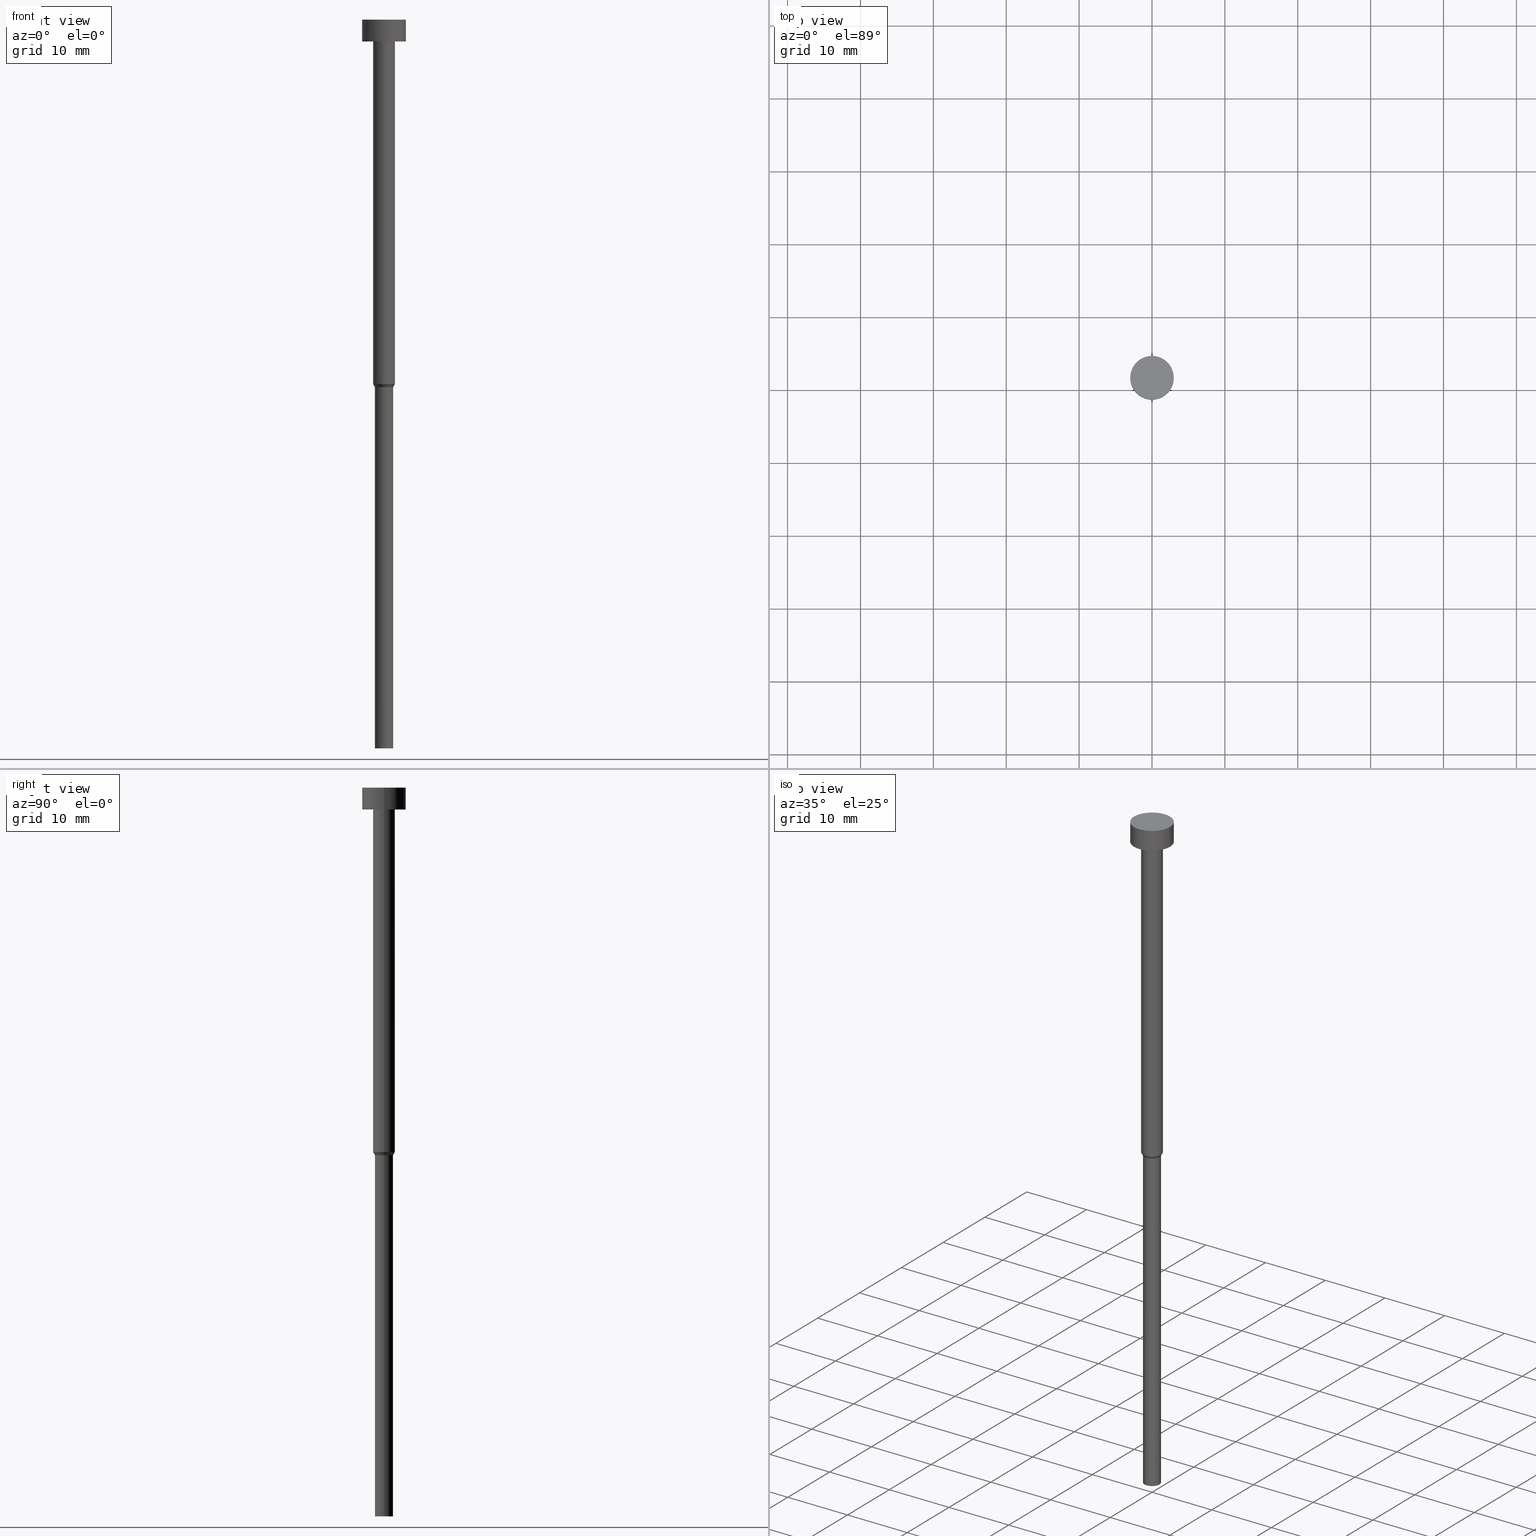
[diagram: canonical four-view strip — front | top / right | iso, engineering-drawing reading convention]
A machine part, canonical four-view strip (front | top / right | iso — engineering-drawing reading convention). The complete STEP part file that produces these views, byte-faithful:
ISO-10303-21;
HEADER;
FILE_DESCRIPTION (( 'STEP AP203' ),
    '1' );
FILE_NAME ('a995.STEP',
    '2023-02-13T10:54:57',
    ( '' ),
    ( '' ),
    'SwSTEP 2.0',
    'SolidWorks 2019',
    '' );
FILE_SCHEMA (( 'CONFIG_CONTROL_DESIGN' ));
ENDSEC;

DATA;
#1 = DIRECTION ( 'NONE',  ( -0.000000000000000000, -0.000000000000000000, 1.000000000000000000 ) ) ;
#2 = ADVANCED_FACE ( 'NONE', ( #145 ), #94, .T. ) ;
#3 = CARTESIAN_POINT ( 'NONE',  ( 0.000000000000000000, -3.000000000000000000, -3.000000000000000888 ) ) ;
#4 = AXIS2_PLACEMENT_3D ( 'NONE', #32, #191, #161 ) ;
#5 = EDGE_CURVE ( 'NONE', #72, #127, #252, .T. ) ;
#6 = DIRECTION ( 'NONE',  ( 1.000000000000000000, 0.000000000000000000, 0.000000000000000000 ) ) ;
#7 = CYLINDRICAL_SURFACE ( 'NONE', #135, 1.250000000000000000 ) ;
#8 = CARTESIAN_POINT ( 'NONE',  ( 0.000000000000000000, 0.000000000000000000, -3.000000000000000888 ) ) ;
#9 = ADVANCED_FACE ( 'NONE', ( #227 ), #91, .T. ) ;
#10 = DIRECTION ( 'NONE',  ( -0.000000000000000000, -0.000000000000000000, 1.000000000000000000 ) ) ;
#11 = ORIENTED_EDGE ( 'NONE', *, *, #16, .F. ) ;
#12 = COORDINATED_UNIVERSAL_TIME_OFFSET ( 1, 0, .AHEAD. ) ;
#13 = ORIENTED_EDGE ( 'NONE', *, *, #139, .F. ) ;
#14 = ORIENTED_EDGE ( 'NONE', *, *, #285, .T. ) ;
#15 = CIRCLE ( 'NONE', #329, 3.000000000000000000 ) ;
#16 = EDGE_CURVE ( 'NONE', #67, #288, #336, .T. ) ;
#17 = DIRECTION ( 'NONE',  ( 1.000000000000000000, 0.000000000000000000, 0.000000000000000000 ) ) ;
#18 = DIRECTION ( 'NONE',  ( 1.000000000000000000, 0.000000000000000000, 0.000000000000000000 ) ) ;
#19 = ADVANCED_FACE ( 'NONE', ( #90 ), #278, .T. ) ;
#20 = CONICAL_SURFACE ( 'NONE', #184, 1.500000000000000000, 0.5235987755982968173 ) ;
#21 = CALENDAR_DATE ( 2023, 13, 2 ) ;
#22 = APPROVAL_STATUS ( 'not_yet_approved' ) ;
#23 = DATE_AND_TIME ( #353, #205 ) ;
#24 = MECHANICAL_CONTEXT ( 'NONE', #320, 'mechanical' ) ;
#25 = CARTESIAN_POINT ( 'NONE',  ( 0.000000000000000000, 0.000000000000000000, -100.0000000000000000 ) ) ;
#26 = LOCAL_TIME ( 11, 54, 57.00000000000000000, #12 ) ;
#27 = DIRECTION ( 'NONE',  ( 1.000000000000000000, 0.000000000000000000, 0.000000000000000000 ) ) ;
#28 = DIRECTION ( 'NONE',  ( 1.000000000000000000, 0.000000000000000000, 0.000000000000000000 ) ) ;
#29 = CC_DESIGN_DATE_AND_TIME_ASSIGNMENT ( #238, #102, ( #311 ) ) ;
#30 = CIRCLE ( 'NONE', #38, 1.250000000000000000 ) ;
#31 = CARTESIAN_POINT ( 'NONE',  ( 3.000000000000000000, 0.000000000000000000, -3.673940397442059868E-16 ) ) ;
#32 = CARTESIAN_POINT ( 'NONE',  ( 0.000000000000000000, 0.000000000000000000, -3.673940397442059868E-16 ) ) ;
#33 = CARTESIAN_POINT ( 'NONE',  ( 0.000000000000000000, 0.000000000000000000, 0.000000000000000000 ) ) ;
#34 = DIRECTION ( 'NONE',  ( -0.000000000000000000, -0.000000000000000000, 1.000000000000000000 ) ) ;
#35 = DIRECTION ( 'NONE',  ( 1.000000000000000000, 0.000000000000000000, 0.000000000000000000 ) ) ;
#36 = EDGE_CURVE ( 'NONE', #127, #72, #235, .T. ) ;
#37 = DIRECTION ( 'NONE',  ( -0.000000000000000000, -0.000000000000000000, 1.000000000000000000 ) ) ;
#38 = AXIS2_PLACEMENT_3D ( 'NONE', #277, #34, #110 ) ;
#39 =( GEOMETRIC_REPRESENTATION_CONTEXT ( 3 ) GLOBAL_UNCERTAINTY_ASSIGNED_CONTEXT ( ( #179 ) ) GLOBAL_UNIT_ASSIGNED_CONTEXT ( ( #156, #250, #107 ) ) REPRESENTATION_CONTEXT ( 'NONE', 'WORKASPACE' ) );
#40 = EDGE_LOOP ( 'NONE', ( #347, #143, #345, #255 ) ) ;
#41 = EDGE_LOOP ( 'NONE', ( #207, #260, #327, #259 ) ) ;
#42 = ORIENTED_EDGE ( 'NONE', *, *, #317, .F. ) ;
#43 = EDGE_CURVE ( 'NONE', #231, #256, #78, .T. ) ;
#44 = ORIENTED_EDGE ( 'NONE', *, *, #186, .F. ) ;
#45 = CC_DESIGN_APPROVAL ( #159, ( #311 ) ) ;
#46 = APPROVAL_ROLE ( '' ) ;
#47 = ORIENTED_EDGE ( 'NONE', *, *, #261, .F. ) ;
#48 = AXIS2_PLACEMENT_3D ( 'NONE', #137, #131, #35 ) ;
#49 = PERSON_AND_ORGANIZATION_ROLE ( 'creator' ) ;
#50 = ORIENTED_EDGE ( 'NONE', *, *, #326, .F. ) ;
#51 = DIRECTION ( 'NONE',  ( -0.000000000000000000, -0.000000000000000000, 1.000000000000000000 ) ) ;
#52 = EDGE_CURVE ( 'NONE', #231, #176, #81, .T. ) ;
#53 = ORIENTED_EDGE ( 'NONE', *, *, #182, .F. ) ;
#54 = CARTESIAN_POINT ( 'NONE',  ( -1.250000000000000000, 1.530808498934191571E-16, -100.0000000000000000 ) ) ;
#55 = CIRCLE ( 'NONE', #146, 1.250000000000000000 ) ;
#56 = DIRECTION ( 'NONE',  ( -0.000000000000000000, -0.000000000000000000, 1.000000000000000000 ) ) ;
#57 = PERSON_AND_ORGANIZATION_ROLE ( 'design_supplier' ) ;
#58 = CIRCLE ( 'NONE', #4, 3.000000000000000000 ) ;
#59 = CYLINDRICAL_SURFACE ( 'NONE', #350, 1.250000000000000000 ) ;
#60 = DIRECTION ( 'NONE',  ( -0.000000000000000000, -0.000000000000000000, 1.000000000000000000 ) ) ;
#61 = LINE ( 'NONE', #163, #233 ) ;
#62 = PRODUCT_DEFINITION_SHAPE ( 'NONE', 'NONE',  #311 ) ;
#63 = ORIENTED_EDGE ( 'NONE', *, *, #242, .T. ) ;
#64 = AXIS2_PLACEMENT_3D ( 'NONE', #65, #271, #249 ) ;
#65 = CARTESIAN_POINT ( 'NONE',  ( 0.000000000000000000, 0.000000000000000000, 0.000000000000000000 ) ) ;
#66 = APPROVAL_STATUS ( 'not_yet_approved' ) ;
#67 = VERTEX_POINT ( 'NONE', #309 ) ;
#68 = VERTEX_POINT ( 'NONE', #313 ) ;
#69 = VERTEX_POINT ( 'NONE', #31 ) ;
#70 = LOCAL_TIME ( 11, 54, 57.00000000000000000, #319 ) ;
#71 = EDGE_LOOP ( 'NONE', ( #246, #342, #352, #50 ) ) ;
#72 = VERTEX_POINT ( 'NONE', #244 ) ;
#73 = ADVANCED_FACE ( 'NONE', ( #108 ), #332, .T. ) ;
#74 = ADVANCED_BREP_SHAPE_REPRESENTATION ( 'a995', ( #82, #175 ), #39 ) ;
#75 = ORIENTED_EDGE ( 'NONE', *, *, #36, .F. ) ;
#76 = CIRCLE ( 'NONE', #80, 1.500000000000000000 ) ;
#77 = CARTESIAN_POINT ( 'NONE',  ( 1.250000000000000000, 0.000000000000000000, -100.0000000000000000 ) ) ;
#78 = CIRCLE ( 'NONE', #147, 1.250000000000000000 ) ;
#79 = DIRECTION ( 'NONE',  ( 0.000000000000000000, 0.000000000000000000, -1.000000000000000000 ) ) ;
#80 = AXIS2_PLACEMENT_3D ( 'NONE', #157, #51, #27 ) ;
#81 = LINE ( 'NONE', #272, #314 ) ;
#82 = MANIFOLD_SOLID_BREP ( 'Rotovat1', #112 ) ;
#83 = CARTESIAN_POINT ( 'NONE',  ( -1.250000000000000000, 1.530808498934191571E-16, 0.000000000000000000 ) ) ;
#84 = PRODUCT_DEFINITION_FORMATION_WITH_SPECIFIED_SOURCE ( 'LIBOVOLN�', '', #206, .NOT_KNOWN. ) ;
#85 = DIRECTION ( 'NONE',  ( 1.000000000000000000, 0.000000000000000000, 0.000000000000000000 ) ) ;
#86 = APPROVAL_ROLE ( '' ) ;
#87 = LINE ( 'NONE', #169, #138 ) ;
#88 = CARTESIAN_POINT ( 'NONE',  ( -3.000000000000000000, 3.673940397442059868E-16, 0.000000000000000000 ) ) ;
#89 = CARTESIAN_POINT ( 'NONE',  ( 0.000000000000000000, 0.000000000000000000, -50.00000000000000000 ) ) ;
#90 = FACE_OUTER_BOUND ( 'NONE', #318, .T. ) ;
#91 = CONICAL_SURFACE ( 'NONE', #268, 1.500000000000000000, 0.5235987755982968173 ) ;
#92 = CARTESIAN_POINT ( 'NONE',  ( -1.500000000000000000, 1.836970198721029934E-16, -50.00000000000000000 ) ) ;
#93 = PERSON_AND_ORGANIZATION ( #304, #306 ) ;
#94 = CYLINDRICAL_SURFACE ( 'NONE', #298, 3.000000000000000000 ) ;
#95 = CARTESIAN_POINT ( 'NONE',  ( -3.000000000000000000, 3.673940397442059868E-16, -3.673940397442059868E-16 ) ) ;
#96 = EDGE_CURVE ( 'NONE', #69, #288, #58, .T. ) ;
#97 = ORIENTED_EDGE ( 'NONE', *, *, #5, .T. ) ;
#98 = CARTESIAN_POINT ( 'NONE',  ( 0.000000000000000000, 0.000000000000000000, 0.000000000000000000 ) ) ;
#99 = ORIENTED_EDGE ( 'NONE', *, *, #119, .T. ) ;
#100 = DIRECTION ( 'NONE',  ( 1.000000000000000000, 0.000000000000000000, 0.000000000000000000 ) ) ;
#101 = PRODUCT_RELATED_PRODUCT_CATEGORY ( 'detail', '', ( #206 ) ) ;
#102 = DATE_TIME_ROLE ( 'creation_date' ) ;
#103 = DIRECTION ( 'NONE',  ( 1.000000000000000000, 0.000000000000000000, 0.000000000000000000 ) ) ;
#104 = CARTESIAN_POINT ( 'NONE',  ( 0.000000000000000000, 0.000000000000000000, -50.00000000000000000 ) ) ;
#105 = CARTESIAN_POINT ( 'NONE',  ( 0.000000000000000000, 0.000000000000000000, -100.0000000000000000 ) ) ;
#106 = CIRCLE ( 'NONE', #48, 1.500000000000000000 ) ;
#107 =( NAMED_UNIT ( * ) SI_UNIT ( $, .STERADIAN. ) SOLID_ANGLE_UNIT ( ) );
#108 = FACE_OUTER_BOUND ( 'NONE', #41, .T. ) ;
#109 = AXIS2_PLACEMENT_3D ( 'NONE', #33, #218, #6 ) ;
#110 = DIRECTION ( 'NONE',  ( 1.000000000000000000, 0.000000000000000000, 0.000000000000000000 ) ) ;
#111 = CARTESIAN_POINT ( 'NONE',  ( 1.250000000000000000, 0.000000000000000000, -50.43301270189222407 ) ) ;
#112 = CLOSED_SHELL ( 'NONE', ( #73, #228, #302, #269, #305, #174, #9, #19, #247, #2, #208 ) ) ;
#113 = CC_DESIGN_PERSON_AND_ORGANIZATION_ASSIGNMENT ( #254, #192, ( #84 ) ) ;
#114 = FACE_OUTER_BOUND ( 'NONE', #117, .T. ) ;
#115 = CARTESIAN_POINT ( 'NONE',  ( 0.000000000000000000, 0.000000000000000000, 0.000000000000000000 ) ) ;
#116 = APPROVAL_DATE_TIME ( #315, #215 ) ;
#117 = EDGE_LOOP ( 'NONE', ( #14, #167, #286, #44 ) ) ;
#118 = EDGE_LOOP ( 'NONE', ( #141, #99, #142, #42 ) ) ;
#119 = EDGE_CURVE ( 'NONE', #68, #176, #30, .T. ) ;
#120 = CARTESIAN_POINT ( 'NONE',  ( 0.000000000000000000, 0.000000000000000000, -3.000000000000000888 ) ) ;
#121 = VECTOR ( 'NONE', #37, 1000.000000000000000 ) ;
#122 = DIRECTION ( 'NONE',  ( -0.000000000000000000, -0.000000000000000000, 1.000000000000000000 ) ) ;
#123 = APPROVAL_STATUS ( 'not_yet_approved' ) ;
#124 = EDGE_CURVE ( 'NONE', #230, #67, #212, .T. ) ;
#125 = APPROVAL_DATE_TIME ( #23, #159 ) ;
#126 = CC_DESIGN_APPROVAL ( #215, ( #84 ) ) ;
#127 = VERTEX_POINT ( 'NONE', #337 ) ;
#128 = CARTESIAN_POINT ( 'NONE',  ( 1.500000000000000000, 0.000000000000000000, -50.00000000000000000 ) ) ;
#129 = CARTESIAN_POINT ( 'NONE',  ( 0.000000000000000000, 0.000000000000000000, 0.000000000000000000 ) ) ;
#130 = ORIENTED_EDGE ( 'NONE', *, *, #43, .T. ) ;
#131 = DIRECTION ( 'NONE',  ( -0.000000000000000000, -0.000000000000000000, 1.000000000000000000 ) ) ;
#132 = EDGE_CURVE ( 'NONE', #67, #230, #229, .T. ) ;
#133 = DIRECTION ( 'NONE',  ( -0.000000000000000000, -0.000000000000000000, 1.000000000000000000 ) ) ;
#134 = DIRECTION ( 'NONE',  ( -0.000000000000000000, -0.000000000000000000, 1.000000000000000000 ) ) ;
#135 = AXIS2_PLACEMENT_3D ( 'NONE', #129, #153, #325 ) ;
#136 = CARTESIAN_POINT ( 'NONE',  ( 0.000000000000000000, 0.000000000000000000, -3.000000000000000888 ) ) ;
#137 = CARTESIAN_POINT ( 'NONE',  ( 0.000000000000000000, 0.000000000000000000, -50.00000000000000000 ) ) ;
#138 = VECTOR ( 'NONE', #289, 1000.000000000000114 ) ;
#139 = EDGE_CURVE ( 'NONE', #288, #69, #15, .T. ) ;
#140 = APPLICATION_CONTEXT ( 'configuration controlled 3d designs of mechanical parts and assemblies' ) ;
#141 = ORIENTED_EDGE ( 'NONE', *, *, #200, .F. ) ;
#142 = ORIENTED_EDGE ( 'NONE', *, *, #186, .T. ) ;
#143 = ORIENTED_EDGE ( 'NONE', *, *, #261, .T. ) ;
#144 = APPROVAL ( #22, 'NEUR�EN�' ) ;
#145 = FACE_OUTER_BOUND ( 'NONE', #331, .T. ) ;
#146 = AXIS2_PLACEMENT_3D ( 'NONE', #25, #1, #103 ) ;
#147 = AXIS2_PLACEMENT_3D ( 'NONE', #105, #219, #330 ) ;
#148 = APPLICATION_PROTOCOL_DEFINITION ( 'international standard', 'config_control_design', 1994, #140 ) ;
#149 = CARTESIAN_POINT ( 'NONE',  ( 3.000000000000000000, 0.000000000000000000, 0.000000000000000000 ) ) ;
#150 = DESIGN_CONTEXT ( 'detailed design', #140, 'design' ) ;
#151 = ORIENTED_EDGE ( 'NONE', *, *, #132, .F. ) ;
#152 = FACE_OUTER_BOUND ( 'NONE', #312, .T. ) ;
#153 = DIRECTION ( 'NONE',  ( -0.000000000000000000, -0.000000000000000000, 1.000000000000000000 ) ) ;
#154 = CC_DESIGN_APPROVAL ( #144, ( #333 ) ) ;
#155 = VERTEX_POINT ( 'NONE', #222 ) ;
#156 =( LENGTH_UNIT ( ) NAMED_UNIT ( * ) SI_UNIT ( .MILLI., .METRE. ) );
#157 = CARTESIAN_POINT ( 'NONE',  ( 0.000000000000000000, 0.000000000000000000, -50.00000000000000000 ) ) ;
#158 = DIRECTION ( 'NONE',  ( 0.000000000000000000, -0.000000000000000000, 1.000000000000000000 ) ) ;
#159 = APPROVAL ( #123, 'NEUR�EN�' ) ;
#160 = VECTOR ( 'NONE', #300, 1000.000000000000000 ) ;
#161 = DIRECTION ( 'NONE',  ( 1.000000000000000000, 0.000000000000000000, 0.000000000000000000 ) ) ;
#162 = COORDINATED_UNIVERSAL_TIME_OFFSET ( 1, 0, .AHEAD. ) ;
#163 = CARTESIAN_POINT ( 'NONE',  ( 1.500000000000000000, 0.000000000000000000, 0.000000000000000000 ) ) ;
#164 = CARTESIAN_POINT ( 'NONE',  ( 0.000000000000000000, 0.000000000000000000, -3.673940397442059868E-16 ) ) ;
#165 = DIRECTION ( 'NONE',  ( 1.000000000000000000, 0.000000000000000000, 0.000000000000000000 ) ) ;
#166 = SECURITY_CLASSIFICATION_LEVEL ( 'unclassified' ) ;
#167 = ORIENTED_EDGE ( 'NONE', *, *, #200, .T. ) ;
#168 = CIRCLE ( 'NONE', #296, 1.250000000000000000 ) ;
#169 = CARTESIAN_POINT ( 'NONE',  ( 1.500000000000000000, 0.000000000000000000, -50.00000000000000000 ) ) ;
#170 = EDGE_LOOP ( 'NONE', ( #257, #151 ) ) ;
#171 = ORIENTED_EDGE ( 'NONE', *, *, #326, .T. ) ;
#172 = DIRECTION ( 'NONE',  ( 1.000000000000000000, 0.000000000000000000, 0.000000000000000000 ) ) ;
#173 = DATE_AND_TIME ( #348, #70 ) ;
#174 = ADVANCED_FACE ( 'NONE', ( #243 ), #7, .T. ) ;
#175 = AXIS2_PLACEMENT_3D ( 'NONE', #98, #323, #100 ) ;
#176 = VERTEX_POINT ( 'NONE', #111 ) ;
#177 = PERSON_AND_ORGANIZATION ( #304, #306 ) ;
#178 = ORIENTED_EDGE ( 'NONE', *, *, #43, .F. ) ;
#179 = UNCERTAINTY_MEASURE_WITH_UNIT (LENGTH_MEASURE( 1.000000000000000082E-05 ), #156, 'distance_accuracy_value', 'NONE');
#180 = COORDINATED_UNIVERSAL_TIME_OFFSET ( 1, 0, .AHEAD. ) ;
#181 = DIRECTION ( 'NONE',  ( -1.000000000000000000, 0.000000000000000000, -0.000000000000000000 ) ) ;
#182 = EDGE_CURVE ( 'NONE', #155, #127, #281, .T. ) ;
#183 = CARTESIAN_POINT ( 'NONE',  ( 0.000000000000000000, 0.000000000000000000, -1.836970198721029934E-16 ) ) ;
#184 = AXIS2_PLACEMENT_3D ( 'NONE', #104, #134, #334 ) ;
#185 = DIRECTION ( 'NONE',  ( -0.000000000000000000, -0.000000000000000000, 1.000000000000000000 ) ) ;
#186 = EDGE_CURVE ( 'NONE', #176, #253, #87, .T. ) ;
#187 = DIRECTION ( 'NONE',  ( -0.4999999999999981681, 6.123233995736742617E-17, 0.8660254037844395958 ) ) ;
#188 = CARTESIAN_POINT ( 'NONE',  ( 0.000000000000000000, 0.000000000000000000, 0.000000000000000000 ) ) ;
#189 = APPROVAL_PERSON_ORGANIZATION ( #265, #159, #237 ) ;
#190 = CYLINDRICAL_SURFACE ( 'NONE', #109, 1.500000000000000000 ) ;
#191 = DIRECTION ( 'NONE',  ( -0.000000000000000000, -0.000000000000000000, 1.000000000000000000 ) ) ;
#192 = PERSON_AND_ORGANIZATION_ROLE ( 'creator' ) ;
#193 = CARTESIAN_POINT ( 'NONE',  ( 0.000000000000000000, 0.000000000000000000, -100.0000000000000000 ) ) ;
#194 = DIRECTION ( 'NONE',  ( -0.000000000000000000, -0.000000000000000000, 1.000000000000000000 ) ) ;
#195 = VECTOR ( 'NONE', #10, 1000.000000000000000 ) ;
#196 = DIRECTION ( 'NONE',  ( -0.000000000000000000, -0.000000000000000000, 1.000000000000000000 ) ) ;
#197 = LINE ( 'NONE', #92, #341 ) ;
#198 = AXIS2_PLACEMENT_3D ( 'NONE', #188, #56, #274 ) ;
#199 = DIRECTION ( 'NONE',  ( -0.000000000000000000, -0.000000000000000000, 1.000000000000000000 ) ) ;
#200 = EDGE_CURVE ( 'NONE', #68, #155, #197, .T. ) ;
#201 = DIRECTION ( 'NONE',  ( -0.000000000000000000, -0.000000000000000000, 1.000000000000000000 ) ) ;
#202 = DIRECTION ( 'NONE',  ( -0.000000000000000000, -0.000000000000000000, 1.000000000000000000 ) ) ;
#203 = ORIENTED_EDGE ( 'NONE', *, *, #52, .F. ) ;
#204 = EDGE_LOOP ( 'NONE', ( #97, #236 ) ) ;
#205 = LOCAL_TIME ( 11, 54, 57.00000000000000000, #180 ) ;
#206 = PRODUCT ( 'a995', 'a995', '', ( #24 ) ) ;
#207 = ORIENTED_EDGE ( 'NONE', *, *, #124, .T. ) ;
#208 = ADVANCED_FACE ( 'NONE', ( #152 ), #273, .T. ) ;
#209 = DATE_TIME_ROLE ( 'classification_date' ) ;
#210 = EDGE_LOOP ( 'NONE', ( #130, #284, #316, #203 ) ) ;
#211 = DATE_AND_TIME ( #279, #26 ) ;
#212 = CIRCLE ( 'NONE', #322, 3.000000000000000000 ) ;
#213 = PERSON_AND_ORGANIZATION_ROLE ( 'design_owner' ) ;
#214 = LINE ( 'NONE', #149, #160 ) ;
#215 = APPROVAL ( #66, 'NEUR�EN�' ) ;
#216 = PERSON_AND_ORGANIZATION ( #304, #306 ) ;
#217 = LINE ( 'NONE', #83, #195 ) ;
#218 = DIRECTION ( 'NONE',  ( -0.000000000000000000, -0.000000000000000000, 1.000000000000000000 ) ) ;
#219 = DIRECTION ( 'NONE',  ( -0.000000000000000000, -0.000000000000000000, 1.000000000000000000 ) ) ;
#220 = AXIS2_PLACEMENT_3D ( 'NONE', #193, #328, #310 ) ;
#221 = CC_DESIGN_PERSON_AND_ORGANIZATION_ASSIGNMENT ( #275, #226, ( #333 ) ) ;
#222 = CARTESIAN_POINT ( 'NONE',  ( -1.500000000000000000, 1.836970198721029934E-16, -50.00000000000000000 ) ) ;
#223 = APPROVAL_PERSON_ORGANIZATION ( #177, #144, #46 ) ;
#224 = AXIS2_PLACEMENT_3D ( 'NONE', #120, #225, #339 ) ;
#225 = DIRECTION ( 'NONE',  ( -0.000000000000000000, -0.000000000000000000, 1.000000000000000000 ) ) ;
#226 = PERSON_AND_ORGANIZATION_ROLE ( 'classification_officer' ) ;
#227 = FACE_OUTER_BOUND ( 'NONE', #118, .T. ) ;
#228 = ADVANCED_FACE ( 'NONE', ( #245 ), #190, .T. ) ;
#229 = CIRCLE ( 'NONE', #232, 3.000000000000000000 ) ;
#230 = VERTEX_POINT ( 'NONE', #321 ) ;
#231 = VERTEX_POINT ( 'NONE', #77 ) ;
#232 = AXIS2_PLACEMENT_3D ( 'NONE', #8, #335, #85 ) ;
#233 = VECTOR ( 'NONE', #185, 1000.000000000000000 ) ;
#234 = CC_DESIGN_PERSON_AND_ORGANIZATION_ASSIGNMENT ( #93, #57, ( #84 ) ) ;
#235 = CIRCLE ( 'NONE', #264, 1.500000000000000000 ) ;
#236 = ORIENTED_EDGE ( 'NONE', *, *, #36, .T. ) ;
#237 = APPROVAL_ROLE ( '' ) ;
#238 = DATE_AND_TIME ( #21, #240 ) ;
#239 = EDGE_CURVE ( 'NONE', #253, #155, #76, .T. ) ;
#240 = LOCAL_TIME ( 11, 54, 57.00000000000000000, #241 ) ;
#241 = COORDINATED_UNIVERSAL_TIME_OFFSET ( 1, 0, .AHEAD. ) ;
#242 = EDGE_CURVE ( 'NONE', #230, #69, #214, .T. ) ;
#243 = FACE_OUTER_BOUND ( 'NONE', #40, .T. ) ;
#244 = CARTESIAN_POINT ( 'NONE',  ( 1.500000000000000000, 0.000000000000000000, -3.000000000000000888 ) ) ;
#245 = FACE_OUTER_BOUND ( 'NONE', #71, .T. ) ;
#246 = ORIENTED_EDGE ( 'NONE', *, *, #239, .T. ) ;
#247 = ADVANCED_FACE ( 'NONE', ( #303, #324 ), #266, .T. ) ;
#248 = DIRECTION ( 'NONE',  ( 1.000000000000000000, 0.000000000000000000, 0.000000000000000000 ) ) ;
#249 = DIRECTION ( 'NONE',  ( 1.000000000000000000, 0.000000000000000000, 0.000000000000000000 ) ) ;
#250 =( NAMED_UNIT ( * ) PLANE_ANGLE_UNIT ( ) SI_UNIT ( $, .RADIAN. ) );
#251 = LOCAL_TIME ( 11, 54, 57.00000000000000000, #162 ) ;
#252 = CIRCLE ( 'NONE', #224, 1.500000000000000000 ) ;
#253 = VERTEX_POINT ( 'NONE', #128 ) ;
#254 = PERSON_AND_ORGANIZATION ( #304, #306 ) ;
#255 = ORIENTED_EDGE ( 'NONE', *, *, #119, .F. ) ;
#256 = VERTEX_POINT ( 'NONE', #54 ) ;
#257 = ORIENTED_EDGE ( 'NONE', *, *, #124, .F. ) ;
#258 = CARTESIAN_POINT ( 'NONE',  ( 0.000000000000000000, 0.000000000000000000, -3.000000000000000888 ) ) ;
#259 = ORIENTED_EDGE ( 'NONE', *, *, #242, .F. ) ;
#260 = ORIENTED_EDGE ( 'NONE', *, *, #16, .T. ) ;
#261 = EDGE_CURVE ( 'NONE', #256, #231, #55, .T. ) ;
#262 = APPROVAL_DATE_TIME ( #173, #144 ) ;
#263 = AXIS2_PLACEMENT_3D ( 'NONE', #183, #158, #270 ) ;
#264 = AXIS2_PLACEMENT_3D ( 'NONE', #258, #199, #172 ) ;
#265 = PERSON_AND_ORGANIZATION ( #304, #306 ) ;
#266 = PLANE ( 'NONE',  #282 ) ;
#267 = CC_DESIGN_SECURITY_CLASSIFICATION ( #333, ( #84 ) ) ;
#268 = AXIS2_PLACEMENT_3D ( 'NONE', #89, #194, #165 ) ;
#269 = ADVANCED_FACE ( 'NONE', ( #308 ), #59, .T. ) ;
#270 = DIRECTION ( 'NONE',  ( 1.000000000000000000, 0.000000000000000000, 0.000000000000000000 ) ) ;
#271 = DIRECTION ( 'NONE',  ( -0.000000000000000000, -0.000000000000000000, 1.000000000000000000 ) ) ;
#272 = CARTESIAN_POINT ( 'NONE',  ( 1.250000000000000000, 0.000000000000000000, 0.000000000000000000 ) ) ;
#273 = PLANE ( 'NONE',  #263 ) ;
#274 = DIRECTION ( 'NONE',  ( 1.000000000000000000, 0.000000000000000000, 0.000000000000000000 ) ) ;
#275 = PERSON_AND_ORGANIZATION ( #304, #306 ) ;
#276 = CC_DESIGN_PERSON_AND_ORGANIZATION_ASSIGNMENT ( #295, #49, ( #311 ) ) ;
#277 = CARTESIAN_POINT ( 'NONE',  ( 0.000000000000000000, 0.000000000000000000, -50.43301270189222407 ) ) ;
#278 = CYLINDRICAL_SURFACE ( 'NONE', #64, 1.500000000000000000 ) ;
#279 = CALENDAR_DATE ( 2023, 13, 2 ) ;
#280 = DIRECTION ( 'NONE',  ( -0.000000000000000000, -0.000000000000000000, 1.000000000000000000 ) ) ;
#281 = LINE ( 'NONE', #340, #121 ) ;
#282 = AXIS2_PLACEMENT_3D ( 'NONE', #3, #79, #181 ) ;
#283 = PLANE ( 'NONE',  #220 ) ;
#284 = ORIENTED_EDGE ( 'NONE', *, *, #297, .T. ) ;
#285 = EDGE_CURVE ( 'NONE', #176, #68, #168, .T. ) ;
#286 = ORIENTED_EDGE ( 'NONE', *, *, #239, .F. ) ;
#287 = DIRECTION ( 'NONE',  ( 1.000000000000000000, 0.000000000000000000, 0.000000000000000000 ) ) ;
#288 = VERTEX_POINT ( 'NONE', #95 ) ;
#289 = DIRECTION ( 'NONE',  ( 0.4999999999999981681, 0.000000000000000000, 0.8660254037844395958 ) ) ;
#290 = APPROVAL_PERSON_ORGANIZATION ( #355, #215, #86 ) ;
#291 = CARTESIAN_POINT ( 'NONE',  ( 0.000000000000000000, 0.000000000000000000, 0.000000000000000000 ) ) ;
#292 = CC_DESIGN_DATE_AND_TIME_ASSIGNMENT ( #211, #209, ( #333 ) ) ;
#293 = SHAPE_DEFINITION_REPRESENTATION ( #62, #74 ) ;
#294 = ORIENTED_EDGE ( 'NONE', *, *, #317, .T. ) ;
#295 = PERSON_AND_ORGANIZATION ( #304, #306 ) ;
#296 = AXIS2_PLACEMENT_3D ( 'NONE', #343, #202, #287 ) ;
#297 = EDGE_CURVE ( 'NONE', #256, #68, #217, .T. ) ;
#298 = AXIS2_PLACEMENT_3D ( 'NONE', #115, #201, #18 ) ;
#299 = ORIENTED_EDGE ( 'NONE', *, *, #139, .T. ) ;
#300 = DIRECTION ( 'NONE',  ( -0.000000000000000000, -0.000000000000000000, 1.000000000000000000 ) ) ;
#301 = FACE_OUTER_BOUND ( 'NONE', #344, .T. ) ;
#302 = ADVANCED_FACE ( 'NONE', ( #114 ), #20, .T. ) ;
#303 = FACE_BOUND ( 'NONE', #204, .T. ) ;
#304 = PERSON ( 'NEUR�EN�', 'NEUR�EN�', 'NEUR�EN�', ('NEUR�EN�'), ('NEUR�EN�'), ('NEUR�EN�') ) ;
#305 = ADVANCED_FACE ( 'NONE', ( #301 ), #283, .T. ) ;
#306 = ORGANIZATION ( 'NEUR�EN�', 'NEUR�EN�', '' ) ;
#307 = APPLICATION_PROTOCOL_DEFINITION ( 'international standard', 'config_control_design', 1994, #320 ) ;
#308 = FACE_OUTER_BOUND ( 'NONE', #210, .T. ) ;
#309 = CARTESIAN_POINT ( 'NONE',  ( -3.000000000000000000, 3.673940397442059868E-16, -3.000000000000000888 ) ) ;
#310 = DIRECTION ( 'NONE',  ( -1.000000000000000000, 0.000000000000000000, -0.000000000000000000 ) ) ;
#311 = PRODUCT_DEFINITION ( 'NEZN�M�', '', #84, #150 ) ;
#312 = EDGE_LOOP ( 'NONE', ( #349, #299 ) ) ;
#313 = CARTESIAN_POINT ( 'NONE',  ( -1.250000000000000000, 1.530808498934191571E-16, -50.43301270189222407 ) ) ;
#314 = VECTOR ( 'NONE', #196, 1000.000000000000000 ) ;
#315 = DATE_AND_TIME ( #338, #251 ) ;
#316 = ORIENTED_EDGE ( 'NONE', *, *, #285, .F. ) ;
#317 = EDGE_CURVE ( 'NONE', #155, #253, #106, .T. ) ;
#318 = EDGE_LOOP ( 'NONE', ( #53, #294, #171, #75 ) ) ;
#319 = COORDINATED_UNIVERSAL_TIME_OFFSET ( 1, 0, .AHEAD. ) ;
#320 = APPLICATION_CONTEXT ( 'configuration controlled 3d designs of mechanical parts and assemblies' ) ;
#321 = CARTESIAN_POINT ( 'NONE',  ( 3.000000000000000000, 0.000000000000000000, -3.000000000000000888 ) ) ;
#322 = AXIS2_PLACEMENT_3D ( 'NONE', #136, #60, #248 ) ;
#323 = DIRECTION ( 'NONE',  ( 0.000000000000000000, 0.000000000000000000, 1.000000000000000000 ) ) ;
#324 = FACE_OUTER_BOUND ( 'NONE', #170, .T. ) ;
#325 = DIRECTION ( 'NONE',  ( 1.000000000000000000, 0.000000000000000000, 0.000000000000000000 ) ) ;
#326 = EDGE_CURVE ( 'NONE', #253, #72, #61, .T. ) ;
#327 = ORIENTED_EDGE ( 'NONE', *, *, #96, .F. ) ;
#328 = DIRECTION ( 'NONE',  ( 0.000000000000000000, 0.000000000000000000, -1.000000000000000000 ) ) ;
#329 = AXIS2_PLACEMENT_3D ( 'NONE', #164, #280, #28 ) ;
#330 = DIRECTION ( 'NONE',  ( 1.000000000000000000, 0.000000000000000000, 0.000000000000000000 ) ) ;
#331 = EDGE_LOOP ( 'NONE', ( #11, #354, #63, #13 ) ) ;
#332 = CYLINDRICAL_SURFACE ( 'NONE', #198, 3.000000000000000000 ) ;
#333 = SECURITY_CLASSIFICATION ( '', '', #166 ) ;
#334 = DIRECTION ( 'NONE',  ( 1.000000000000000000, 0.000000000000000000, 0.000000000000000000 ) ) ;
#335 = DIRECTION ( 'NONE',  ( -0.000000000000000000, -0.000000000000000000, 1.000000000000000000 ) ) ;
#336 = LINE ( 'NONE', #88, #351 ) ;
#337 = CARTESIAN_POINT ( 'NONE',  ( -1.500000000000000000, 1.836970198721029934E-16, -3.000000000000000888 ) ) ;
#338 = CALENDAR_DATE ( 2023, 13, 2 ) ;
#339 = DIRECTION ( 'NONE',  ( 1.000000000000000000, 0.000000000000000000, 0.000000000000000000 ) ) ;
#340 = CARTESIAN_POINT ( 'NONE',  ( -1.500000000000000000, 1.836970198721029934E-16, 0.000000000000000000 ) ) ;
#341 = VECTOR ( 'NONE', #187, 1000.000000000000114 ) ;
#342 = ORIENTED_EDGE ( 'NONE', *, *, #182, .T. ) ;
#343 = CARTESIAN_POINT ( 'NONE',  ( 0.000000000000000000, 0.000000000000000000, -50.43301270189222407 ) ) ;
#344 = EDGE_LOOP ( 'NONE', ( #178, #47 ) ) ;
#345 = ORIENTED_EDGE ( 'NONE', *, *, #52, .T. ) ;
#346 = CC_DESIGN_PERSON_AND_ORGANIZATION_ASSIGNMENT ( #216, #213, ( #206 ) ) ;
#347 = ORIENTED_EDGE ( 'NONE', *, *, #297, .F. ) ;
#348 = CALENDAR_DATE ( 2023, 13, 2 ) ;
#349 = ORIENTED_EDGE ( 'NONE', *, *, #96, .T. ) ;
#350 = AXIS2_PLACEMENT_3D ( 'NONE', #291, #122, #17 ) ;
#351 = VECTOR ( 'NONE', #133, 1000.000000000000000 ) ;
#352 = ORIENTED_EDGE ( 'NONE', *, *, #5, .F. ) ;
#353 = CALENDAR_DATE ( 2023, 13, 2 ) ;
#354 = ORIENTED_EDGE ( 'NONE', *, *, #132, .T. ) ;
#355 = PERSON_AND_ORGANIZATION ( #304, #306 ) ;
ENDSEC;
END-ISO-10303-21;
